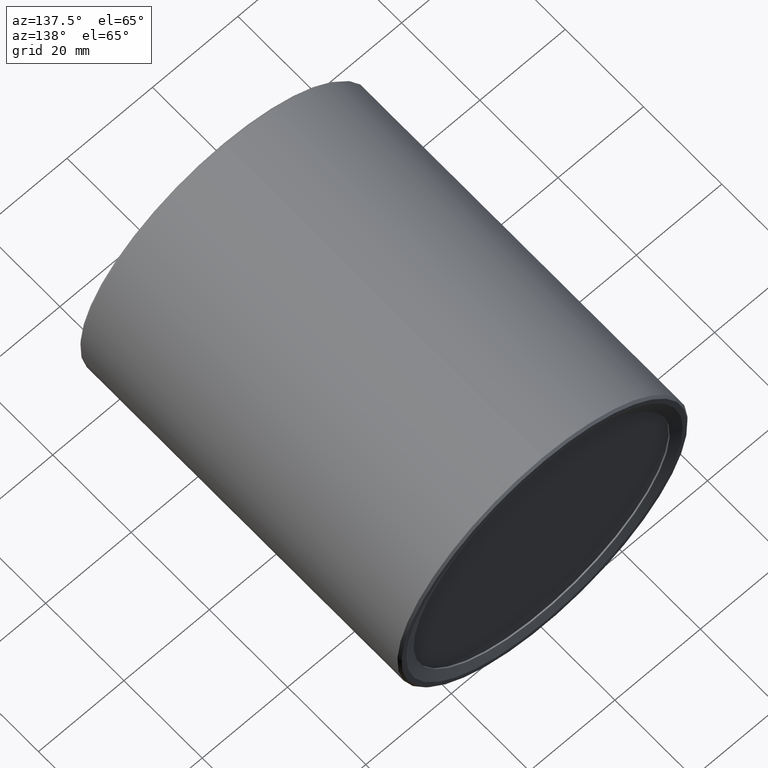
[diagram: clean part render]
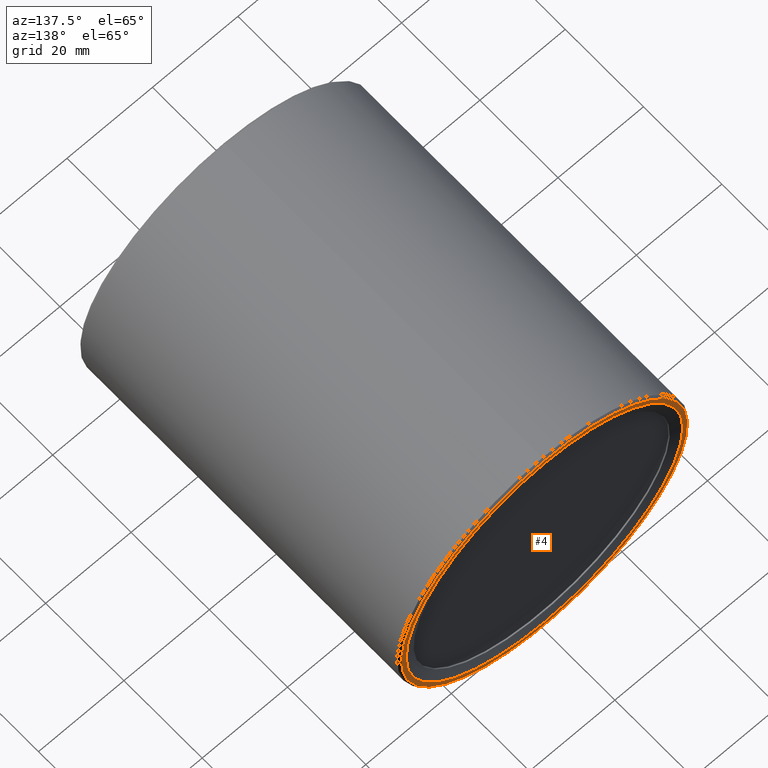
[diagram: same view with one face highlighted and labeled with its STEP entity id]
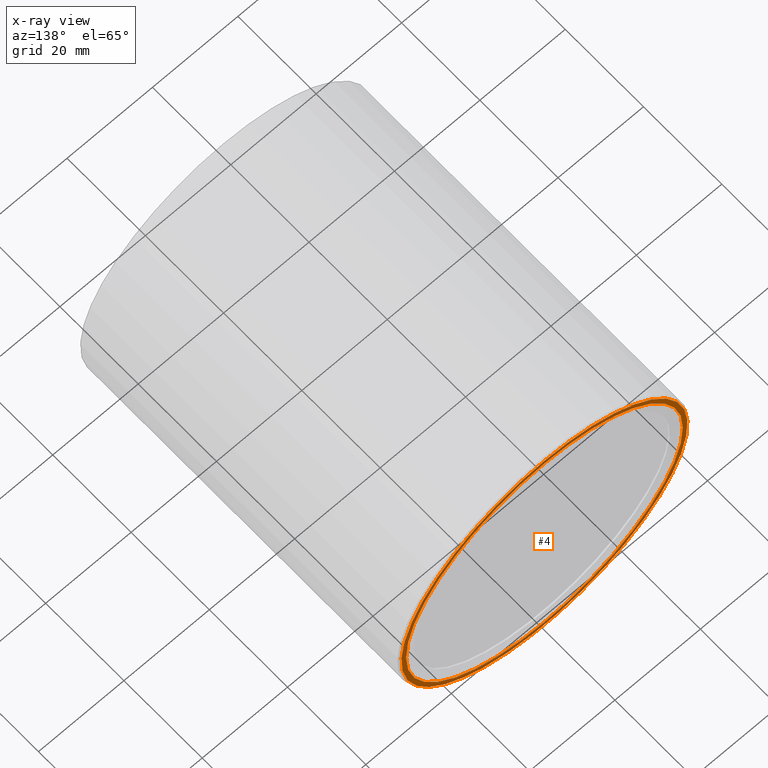
[diagram: x-ray of the same camera — body ghosted, the highlighted face saturated]
A machine part, auxiliary view. The second image highlights one B-rep face of the part: STEP entity #4.
The next image is the same camera in x-ray: the body ghosted, the highlighted face saturated — about 0% of this face is hidden behind the body in this view.
In plain terms, the highlighted planar face has unit normal (0, 1, 0).
Its self-contained STEP definition (entity closure, byte-faithful):
#4 = ADVANCED_FACE ( 'NONE', ( #233, #262 ), #69, .T. ) ;
#14 = DIRECTION ( 'NONE',  ( 0.000000000000000000, 1.000000000000000000, 0.000000000000000000 ) ) ;
#63 = EDGE_LOOP ( 'NONE', ( #170 ) ) ;
#69 = PLANE ( 'NONE',  #345 ) ;
#75 = DIRECTION ( 'NONE',  ( 0.000000000000000000, 1.000000000000000000, 0.000000000000000000 ) ) ;
#119 = DIRECTION ( 'NONE',  ( 0.000000000000000000, -0.000000000000000000, 1.000000000000000000 ) ) ;
#161 = CIRCLE ( 'NONE', #332, 33.49999999999997158 ) ;
#162 = CARTESIAN_POINT ( 'NONE',  ( 0.000000000000000000, 82.00000000000000000, 0.000000000000000000 ) ) ;
#163 = VERTEX_POINT ( 'NONE', #223 ) ;
#170 = ORIENTED_EDGE ( 'NONE', *, *, #317, .F. ) ;
#189 = VERTEX_POINT ( 'NONE', #304 ) ;
#191 = EDGE_CURVE ( 'NONE', #163, #163, #161, .T. ) ;
#193 = ORIENTED_EDGE ( 'NONE', *, *, #191, .T. ) ;
#194 = DIRECTION ( 'NONE',  ( -0.000000000000000000, 1.000000000000000000, -0.000000000000000000 ) ) ;
#223 = CARTESIAN_POINT ( 'NONE',  ( 0.000000000000000000, 82.00000000000000000, 33.49999999999997158 ) ) ;
#225 = EDGE_LOOP ( 'NONE', ( #193 ) ) ;
#233 = FACE_BOUND ( 'NONE', #63, .T. ) ;
#248 = CIRCLE ( 'NONE', #277, 32.40071978775878137 ) ;
#251 = DIRECTION ( 'NONE',  ( 0.000000000000000000, 0.000000000000000000, 1.000000000000000000 ) ) ;
#262 = FACE_OUTER_BOUND ( 'NONE', #225, .T. ) ;
#277 = AXIS2_PLACEMENT_3D ( 'NONE', #162, #194, #251 ) ;
#287 = CARTESIAN_POINT ( 'NONE',  ( 0.000000000000000000, 82.00000000000000000, 0.000000000000000000 ) ) ;
#298 = CARTESIAN_POINT ( 'NONE',  ( 0.000000000000000000, 82.00000000000000000, 0.000000000000000000 ) ) ;
#300 = DIRECTION ( 'NONE',  ( 0.000000000000000000, 0.000000000000000000, 1.000000000000000000 ) ) ;
#304 = CARTESIAN_POINT ( 'NONE',  ( 0.000000000000000000, 82.00000000000000000, 32.40071978775878137 ) ) ;
#317 = EDGE_CURVE ( 'NONE', #189, #189, #248, .T. ) ;
#332 = AXIS2_PLACEMENT_3D ( 'NONE', #298, #75, #300 ) ;
#345 = AXIS2_PLACEMENT_3D ( 'NONE', #287, #14, #119 ) ;